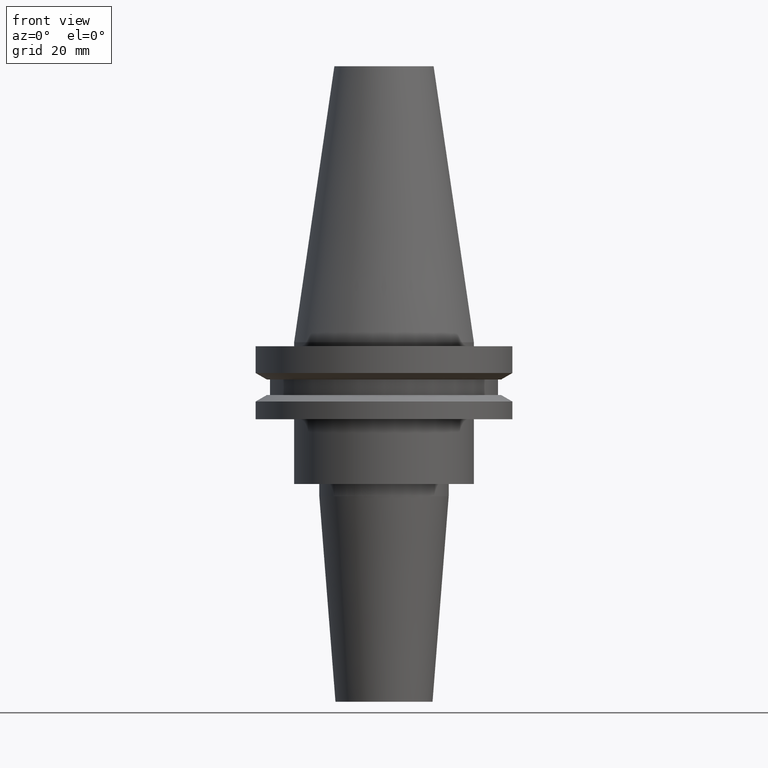
[diagram: clean part render]
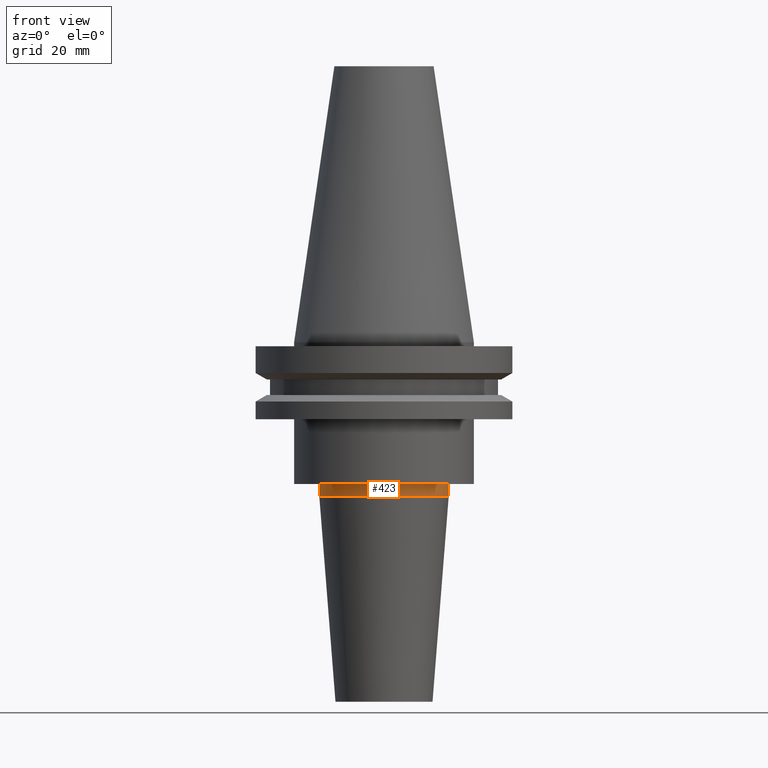
[diagram: same view with one face highlighted and labeled with its STEP entity id]
A machine part, front view. The second image highlights one B-rep face of the part: STEP entity #423.
In plain terms, the highlighted cylindrical surface (partial cylindrical patch) has radius 16 mm, axis along (-0, -0, 1).
Its self-contained STEP definition (entity closure, byte-faithful):
#10 = CARTESIAN_POINT ( 'NONE',  ( -16.00000000000000000, 1.959434878635765131E-15, -35.04999999999999716 ) ) ;
#27 = EDGE_CURVE ( 'NONE', #819, #315, #668, .T. ) ;
#47 = VECTOR ( 'NONE', #643, 1000.000000000000000 ) ;
#49 = CARTESIAN_POINT ( 'NONE',  ( 0.000000000000000000, 0.000000000000000000, 0.000000000000000000 ) ) ;
#63 = VERTEX_POINT ( 'NONE', #10 ) ;
#161 = CARTESIAN_POINT ( 'NONE',  ( -16.00000000000000000, 1.959434878635765131E-15, -38.07518105529580055 ) ) ;
#170 = AXIS2_PLACEMENT_3D ( 'NONE', #49, #192, #583 ) ;
#171 = DIRECTION ( 'NONE',  ( 1.000000000000000000, 0.000000000000000000, 0.000000000000000000 ) ) ;
#192 = DIRECTION ( 'NONE',  ( -0.000000000000000000, -0.000000000000000000, 1.000000000000000000 ) ) ;
#219 = VERTEX_POINT ( 'NONE', #161 ) ;
#242 = CARTESIAN_POINT ( 'NONE',  ( 0.000000000000000000, 0.000000000000000000, -35.04999999999999716 ) ) ;
#250 = CARTESIAN_POINT ( 'NONE',  ( 16.00000000000000000, 0.000000000000000000, -35.04999999999999716 ) ) ;
#254 = CARTESIAN_POINT ( 'NONE',  ( -16.00000000000000000, 1.959434878635765131E-15, 0.000000000000000000 ) ) ;
#255 = ORIENTED_EDGE ( 'NONE', *, *, #417, .T. ) ;
#275 = CARTESIAN_POINT ( 'NONE',  ( 16.00000000000000000, 0.000000000000000000, 0.000000000000000000 ) ) ;
#315 = VERTEX_POINT ( 'NONE', #250 ) ;
#319 = AXIS2_PLACEMENT_3D ( 'NONE', #242, #505, #171 ) ;
#331 = CIRCLE ( 'NONE', #319, 16.00000000000000000 ) ;
#346 = EDGE_CURVE ( 'NONE', #219, #63, #849, .T. ) ;
#350 = AXIS2_PLACEMENT_3D ( 'NONE', #449, #444, #510 ) ;
#379 = VECTOR ( 'NONE', #805, 1000.000000000000000 ) ;
#417 = EDGE_CURVE ( 'NONE', #219, #819, #506, .T. ) ;
#423 = ADVANCED_FACE ( 'NONE', ( #706 ), #782, .T. ) ;
#444 = DIRECTION ( 'NONE',  ( -0.000000000000000000, -0.000000000000000000, 1.000000000000000000 ) ) ;
#449 = CARTESIAN_POINT ( 'NONE',  ( 0.000000000000000000, 0.000000000000000000, -38.07518105529580055 ) ) ;
#505 = DIRECTION ( 'NONE',  ( -0.000000000000000000, -0.000000000000000000, 1.000000000000000000 ) ) ;
#506 = CIRCLE ( 'NONE', #350, 16.00000000000000000 ) ;
#510 = DIRECTION ( 'NONE',  ( 1.000000000000000000, 0.000000000000000000, 0.000000000000000000 ) ) ;
#583 = DIRECTION ( 'NONE',  ( 1.000000000000000000, 0.000000000000000000, 0.000000000000000000 ) ) ;
#600 = ORIENTED_EDGE ( 'NONE', *, *, #740, .F. ) ;
#630 = ORIENTED_EDGE ( 'NONE', *, *, #346, .F. ) ;
#634 = EDGE_LOOP ( 'NONE', ( #630, #255, #713, #600 ) ) ;
#643 = DIRECTION ( 'NONE',  ( -0.000000000000000000, -0.000000000000000000, 1.000000000000000000 ) ) ;
#668 = LINE ( 'NONE', #275, #379 ) ;
#706 = FACE_OUTER_BOUND ( 'NONE', #634, .T. ) ;
#713 = ORIENTED_EDGE ( 'NONE', *, *, #27, .T. ) ;
#719 = CARTESIAN_POINT ( 'NONE',  ( 16.00000000000000000, 0.000000000000000000, -38.07518105529580055 ) ) ;
#740 = EDGE_CURVE ( 'NONE', #63, #315, #331, .T. ) ;
#782 = CYLINDRICAL_SURFACE ( 'NONE', #170, 16.00000000000000000 ) ;
#805 = DIRECTION ( 'NONE',  ( -0.000000000000000000, -0.000000000000000000, 1.000000000000000000 ) ) ;
#819 = VERTEX_POINT ( 'NONE', #719 ) ;
#849 = LINE ( 'NONE', #254, #47 ) ;